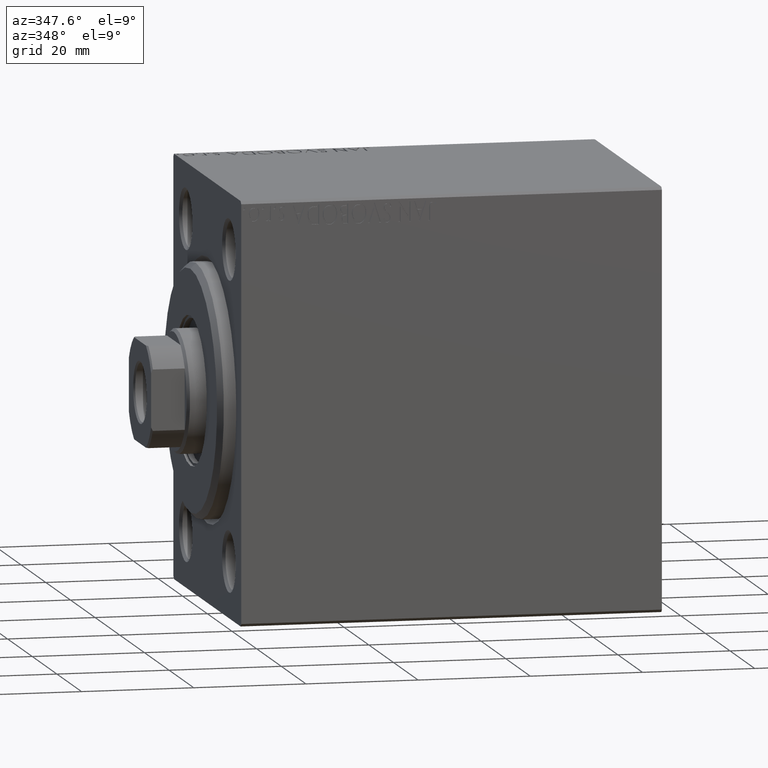
[diagram: clean part render]
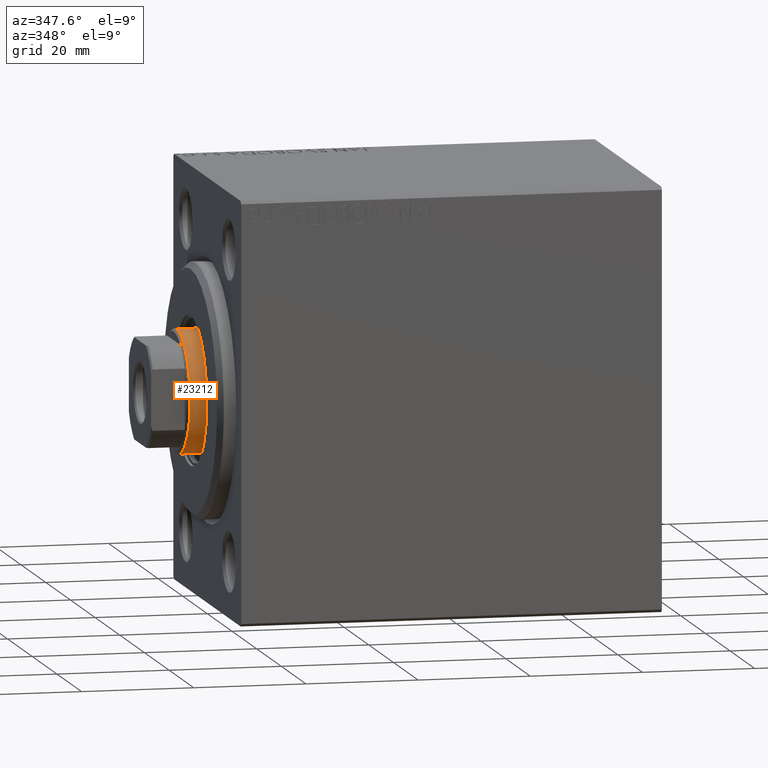
[diagram: same view with one face highlighted and labeled with its STEP entity id]
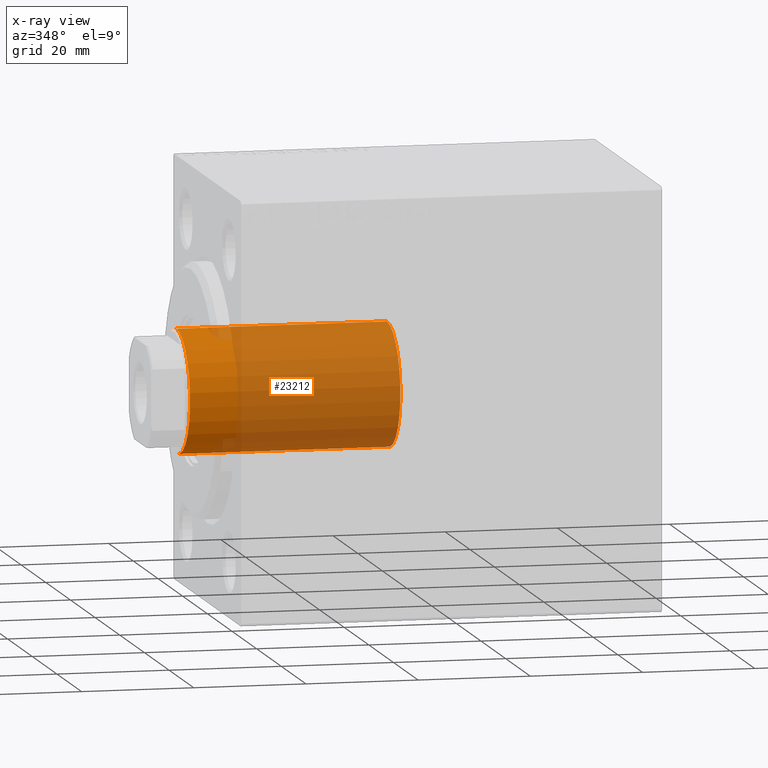
[diagram: x-ray of the same camera — body ghosted, the highlighted face saturated]
A machine part, auxiliary view. The second image highlights one B-rep face of the part: STEP entity #23212.
The next image is the same camera in x-ray: the body ghosted, the highlighted face saturated — about 79% of this face is hidden behind the body in this view.
In plain terms, the highlighted cylindrical surface (partial cylindrical patch) has radius 11 mm, axis along (1, -0, -0).
Its self-contained STEP definition (entity closure, byte-faithful):
#1028 = DIRECTION ( 'NONE',  ( 0.000000000000000000, 0.000000000000000000, 1.000000000000000000 ) ) ;
#4403 = AXIS2_PLACEMENT_3D ( 'NONE', #38717, #1028, #32208 ) ;
#4687 = ORIENTED_EDGE ( 'NONE', *, *, #12030, .F. ) ;
#4959 = AXIS2_PLACEMENT_3D ( 'NONE', #20650, #10984, #17511 ) ;
#5391 = VERTEX_POINT ( 'NONE', #28373 ) ;
#5715 = LINE ( 'NONE', #39379, #28830 ) ;
#6023 = LINE ( 'NONE', #39904, #6922 ) ;
#6922 = VECTOR ( 'NONE', #9616, 1000.000000000000000 ) ;
#8405 = DIRECTION ( 'NONE',  ( 1.000000000000000000, 0.000000000000000000, 0.000000000000000000 ) ) ;
#9616 = DIRECTION ( 'NONE',  ( -0.000000000000000000, -0.000000000000000000, -1.000000000000000000 ) ) ;
#10984 = DIRECTION ( 'NONE',  ( -0.000000000000000000, -0.000000000000000000, -1.000000000000000000 ) ) ;
#12030 = EDGE_CURVE ( 'NONE', #29256, #18934, #6023, .T. ) ;
#12044 = CARTESIAN_POINT ( 'NONE',  ( 11.00000000000000000, 1.347111479062088405E-15, 33.00000000000000000 ) ) ;
#15798 = CARTESIAN_POINT ( 'NONE',  ( 0.000000000000000000, 0.000000000000000000, 70.50000000000002842 ) ) ;
#17511 = DIRECTION ( 'NONE',  ( -1.000000000000000000, 0.000000000000000000, 0.000000000000000000 ) ) ;
#17512 = EDGE_LOOP ( 'NONE', ( #4687, #34419, #24902, #35870 ) ) ;
#18669 = AXIS2_PLACEMENT_3D ( 'NONE', #15798, #22545, #8405 ) ;
#18934 = VERTEX_POINT ( 'NONE', #12044 ) ;
#19415 = DIRECTION ( 'NONE',  ( -0.000000000000000000, -0.000000000000000000, -1.000000000000000000 ) ) ;
#20650 = CARTESIAN_POINT ( 'NONE',  ( 0.000000000000000000, 0.000000000000000000, 71.00000000000001421 ) ) ;
#22545 = DIRECTION ( 'NONE',  ( 0.000000000000000000, 0.000000000000000000, -1.000000000000000000 ) ) ;
#23212 = ADVANCED_FACE ( 'NONE', ( #34538 ), #31625, .T. ) ;
#24902 = ORIENTED_EDGE ( 'NONE', *, *, #33524, .T. ) ;
#25720 = CARTESIAN_POINT ( 'NONE',  ( -11.00000000000000000, 0.000000000000000000, 70.50000000000002842 ) ) ;
#28373 = CARTESIAN_POINT ( 'NONE',  ( -11.00000000000000000, 0.000000000000000000, 33.00000000000000000 ) ) ;
#28690 = EDGE_CURVE ( 'NONE', #29256, #35505, #29406, .T. ) ;
#28830 = VECTOR ( 'NONE', #19415, 1000.000000000000000 ) ;
#29256 = VERTEX_POINT ( 'NONE', #35224 ) ;
#29406 = CIRCLE ( 'NONE', #18669, 11.00000000000000000 ) ;
#30929 = EDGE_CURVE ( 'NONE', #5391, #18934, #41640, .T. ) ;
#31625 = CYLINDRICAL_SURFACE ( 'NONE', #4959, 11.00000000000000000 ) ;
#32208 = DIRECTION ( 'NONE',  ( 1.000000000000000000, 0.000000000000000000, 0.000000000000000000 ) ) ;
#33524 = EDGE_CURVE ( 'NONE', #35505, #5391, #5715, .T. ) ;
#34419 = ORIENTED_EDGE ( 'NONE', *, *, #28690, .T. ) ;
#34538 = FACE_OUTER_BOUND ( 'NONE', #17512, .T. ) ;
#35224 = CARTESIAN_POINT ( 'NONE',  ( 11.00000000000000000, 1.347111479062088405E-15, 70.50000000000002842 ) ) ;
#35505 = VERTEX_POINT ( 'NONE', #25720 ) ;
#35870 = ORIENTED_EDGE ( 'NONE', *, *, #30929, .T. ) ;
#38717 = CARTESIAN_POINT ( 'NONE',  ( 0.000000000000000000, 0.000000000000000000, 33.00000000000000000 ) ) ;
#39379 = CARTESIAN_POINT ( 'NONE',  ( -11.00000000000000000, 0.000000000000000000, 71.00000000000001421 ) ) ;
#39904 = CARTESIAN_POINT ( 'NONE',  ( 11.00000000000000000, 1.347111479062088405E-15, 71.00000000000001421 ) ) ;
#41640 = CIRCLE ( 'NONE', #4403, 11.00000000000000000 ) ;